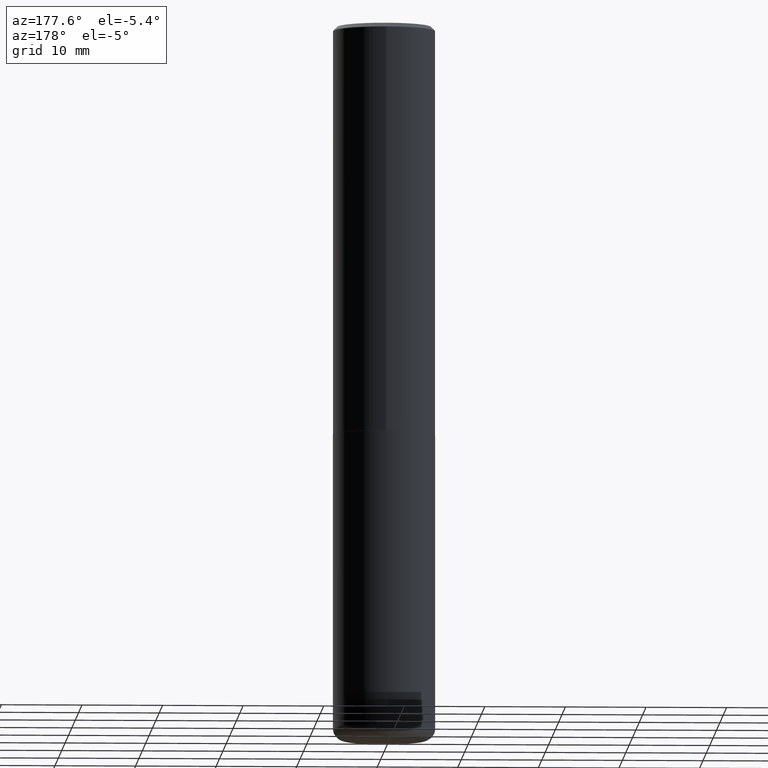
[diagram: clean part render]
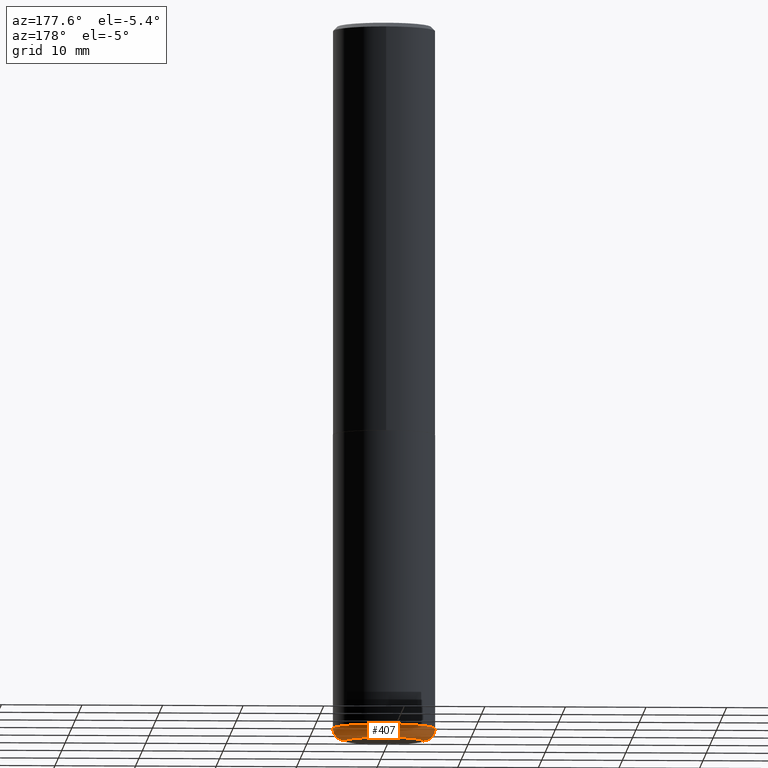
[diagram: same view with one face highlighted and labeled with its STEP entity id]
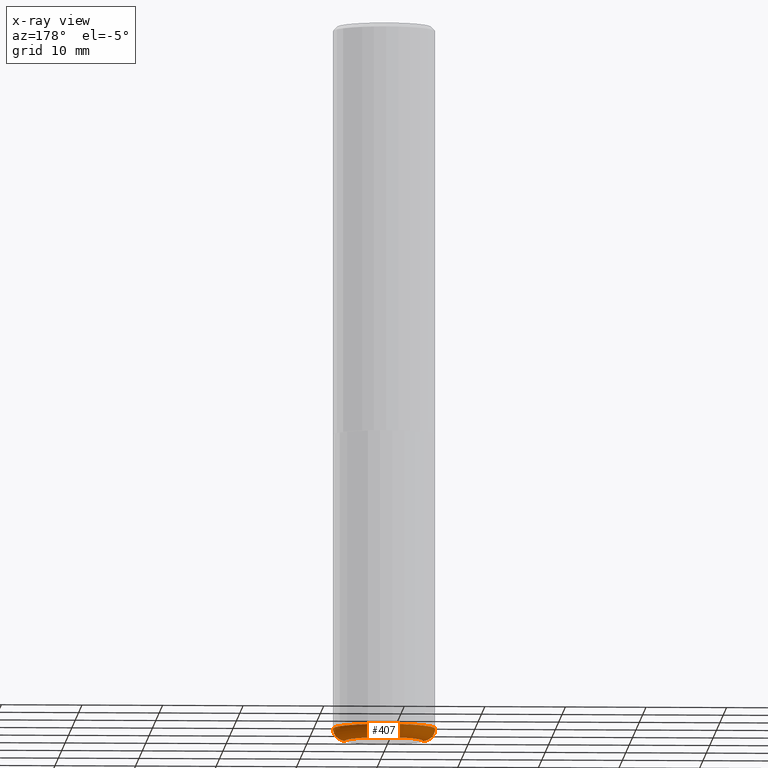
[diagram: x-ray of the same camera — body ghosted, the highlighted face saturated]
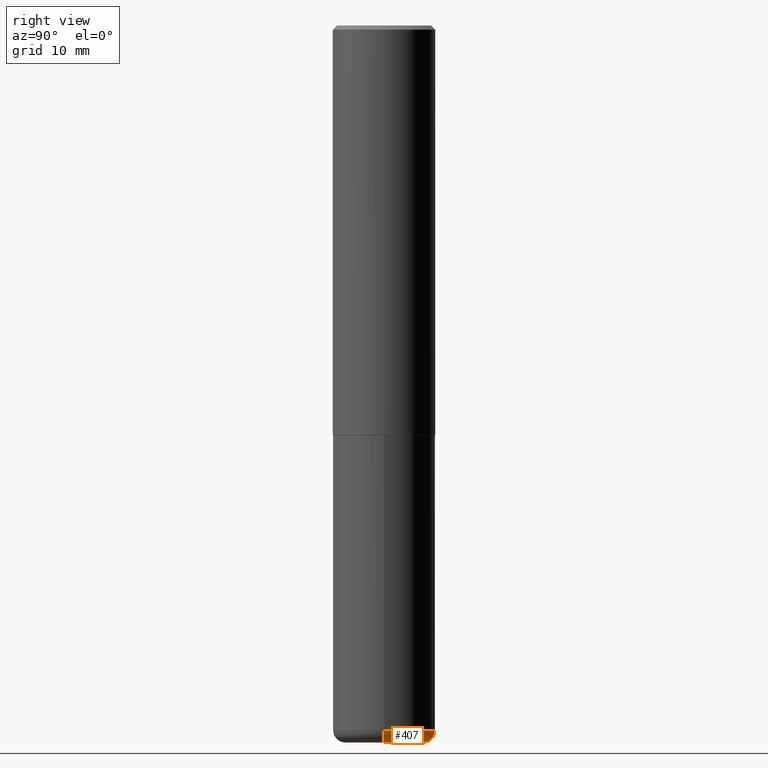
[diagram: same view with one face highlighted and labeled with its STEP entity id]
A machine part, auxiliary view. The second image highlights one B-rep face of the part: STEP entity #407.
The next image is the same camera in x-ray: the body ghosted, the highlighted face saturated — about 0% of this face is hidden behind the body in this view.
A second angle (right view) of the same face is appended — the face is thin or edge-on in the first view.
In plain terms, the highlighted toroidal blend (fillet) surface has major radius 4.826 mm and minor (blend) radius 1.524 mm.
Its self-contained STEP definition (entity closure, byte-faithful):
#26 = DIRECTION ( 'NONE',  ( 1.000000000000000000, -6.982962677686265133E-15, 4.883557194083112340E-29 ) ) ;
#41 = DIRECTION ( 'NONE',  ( -6.982962677686266711E-15, -1.000000000000000000, 3.491481338843145583E-15 ) ) ;
#56 = ORIENTED_EDGE ( 'NONE', *, *, #62, .T. ) ;
#62 = EDGE_CURVE ( 'NONE', #225, #285, #342, .T. ) ;
#77 = DIRECTION ( 'NONE',  ( -2.445468806185136597E-29, 3.491481338843145583E-15, 1.000000000000000000 ) ) ;
#101 = CARTESIAN_POINT ( 'NONE',  ( -0.2499999999999999722, -1.023433896622016898E-14, -3.439999999999999947 ) ) ;
#110 = CARTESIAN_POINT ( 'NONE',  ( 8.412412693276869938E-29, -1.201069580562042103E-14, -3.439999999999999947 ) ) ;
#119 = EDGE_CURVE ( 'NONE', #366, #152, #355, .T. ) ;
#135 = FACE_OUTER_BOUND ( 'NONE', #311, .T. ) ;
#139 = CARTESIAN_POINT ( 'NONE',  ( 8.412412693276869938E-29, -1.201069580562042103E-14, -3.439999999999999947 ) ) ;
#142 = EDGE_CURVE ( 'NONE', #366, #225, #165, .T. ) ;
#150 = AXIS2_PLACEMENT_3D ( 'NONE', #139, #263, #26 ) ;
#152 = VERTEX_POINT ( 'NONE', #336 ) ;
#163 = DIRECTION ( 'NONE',  ( -2.445468806185136597E-29, 3.491481338843145583E-15, 1.000000000000000000 ) ) ;
#165 = CIRCLE ( 'NONE', #293, 0.1899999999999999745 ) ;
#166 = CARTESIAN_POINT ( 'NONE',  ( 0.1899999999999999745, -1.354694759471140096E-14, -3.500000000000000000 ) ) ;
#168 = ORIENTED_EDGE ( 'NONE', *, *, #119, .F. ) ;
#186 = ORIENTED_EDGE ( 'NONE', *, *, #302, .F. ) ;
#211 = AXIS2_PLACEMENT_3D ( 'NONE', #358, #41, #272 ) ;
#213 = DIRECTION ( 'NONE',  ( 7.105427357601001859E-15, 1.000000000000000000, -3.491481338843145583E-15 ) ) ;
#216 = DIRECTION ( 'NONE',  ( -1.000000000000000000, 7.105427357600997914E-15, 0.000000000000000000 ) ) ;
#225 = VERTEX_POINT ( 'NONE', #368 ) ;
#228 = CIRCLE ( 'NONE', #324, 0.2500000000000000000 ) ;
#242 = CARTESIAN_POINT ( 'NONE',  ( 8.559140821647976968E-29, -1.222018468595100934E-14, -3.500000000000000000 ) ) ;
#257 = AXIS2_PLACEMENT_3D ( 'NONE', #371, #213, #216 ) ;
#263 = DIRECTION ( 'NONE',  ( -2.445468806185136597E-29, 3.491481338843145583E-15, 1.000000000000000000 ) ) ;
#264 = TOROIDAL_SURFACE ( 'NONE', #150, 0.1899999999999999745, 0.05999999999999995615 ) ;
#272 = DIRECTION ( 'NONE',  ( 1.000000000000000000, -6.982962677686274599E-15, 0.000000000000000000 ) ) ;
#285 = VERTEX_POINT ( 'NONE', #101 ) ;
#293 = AXIS2_PLACEMENT_3D ( 'NONE', #242, #77, #362 ) ;
#302 = EDGE_CURVE ( 'NONE', #152, #285, #228, .T. ) ;
#311 = EDGE_LOOP ( 'NONE', ( #316, #56, #186, #168 ) ) ;
#316 = ORIENTED_EDGE ( 'NONE', *, *, #142, .T. ) ;
#324 = AXIS2_PLACEMENT_3D ( 'NONE', #110, #163, #356 ) ;
#336 = CARTESIAN_POINT ( 'NONE',  ( 0.2499999999999999722, -1.375643647504198770E-14, -3.439999999999999947 ) ) ;
#342 = CIRCLE ( 'NONE', #257, 0.05999999999999994227 ) ;
#355 = CIRCLE ( 'NONE', #211, 0.05999999999999994227 ) ;
#356 = DIRECTION ( 'NONE',  ( 1.000000000000000000, -6.982962677686270655E-15, 0.000000000000000000 ) ) ;
#358 = CARTESIAN_POINT ( 'NONE',  ( 0.1899999999999999745, -1.333745871438081265E-14, -3.439999999999999947 ) ) ;
#362 = DIRECTION ( 'NONE',  ( 1.000000000000000000, -6.982962677686273021E-15, 0.000000000000000000 ) ) ;
#366 = VERTEX_POINT ( 'NONE', #166 ) ;
#368 = CARTESIAN_POINT ( 'NONE',  ( -0.1899999999999999745, -1.055224622711349575E-14, -3.500000000000000000 ) ) ;
#371 = CARTESIAN_POINT ( 'NONE',  ( -0.1899999999999999745, -1.066066460767623105E-14, -3.439999999999999947 ) ) ;
#407 = ADVANCED_FACE ( 'NONE', ( #135 ), #264, .T. ) ;